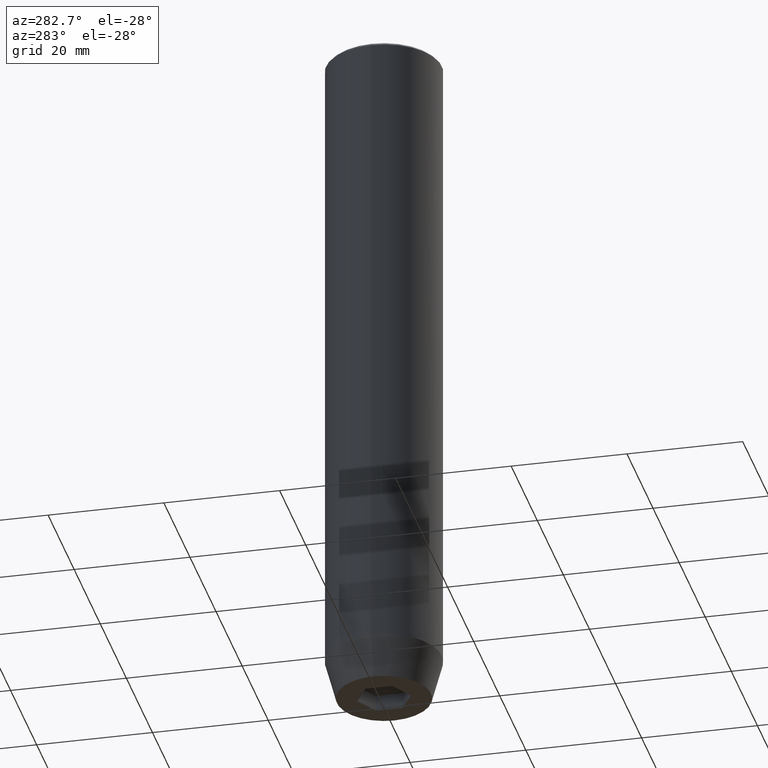
[diagram: clean part render]
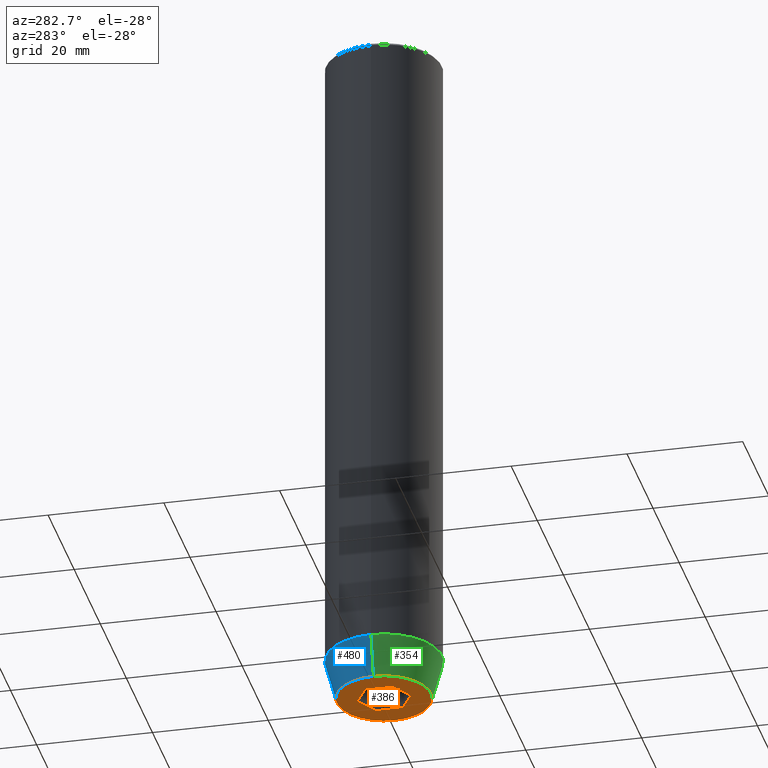
[diagram: same view with three faces highlighted in distinct colors, each labeled with its STEP entity id]
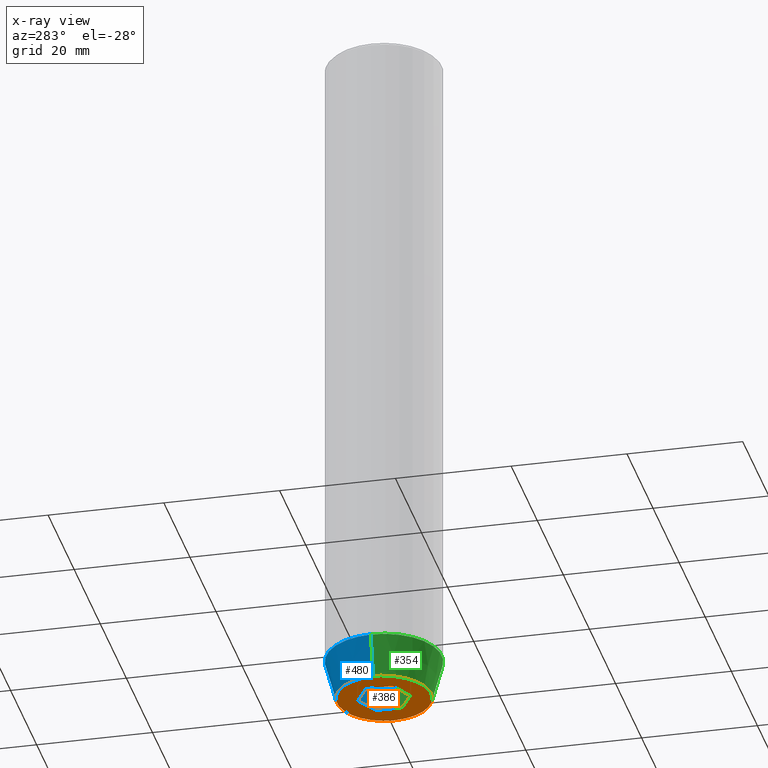
[diagram: x-ray of the same camera — body ghosted, the three highlighted faces saturated]
A machine part, auxiliary view with three faces highlighted in distinct colors.
The next image is the same camera in x-ray (body ghosted, the three faces saturated) — at least one of them is partly hidden behind the body in this view.
Their STEP definitions:

[orange] entity #386 — the highlighted planar face has unit normal (0, 0, -1).
#1 = VERTEX_POINT ( 'NONE', #94 ) ;
#27 = EDGE_CURVE ( 'NONE', #186, #104, #553, .T. ) ;
#33 = CARTESIAN_POINT ( 'NONE',  ( -4.000000000000000000, 2.309401076758503368, -120.0000000000000000 ) ) ;
#48 = DIRECTION ( 'NONE',  ( 0.000000000000000000, -1.000000000000000000, 0.000000000000000000 ) ) ;
#52 = AXIS2_PLACEMENT_3D ( 'NONE', #465, #102, #151 ) ;
#70 = ORIENTED_EDGE ( 'NONE', *, *, #536, .F. ) ;
#91 = AXIS2_PLACEMENT_3D ( 'NONE', #288, #454, #414 ) ;
#94 = CARTESIAN_POINT ( 'NONE',  ( 2.168404344971008868E-16, 4.618802153517005848, -120.0000000000000000 ) ) ;
#102 = DIRECTION ( 'NONE',  ( -0.000000000000000000, -0.000000000000000000, 1.000000000000000000 ) ) ;
#104 = VERTEX_POINT ( 'NONE', #33 ) ;
#107 = CARTESIAN_POINT ( 'NONE',  ( 0.000000000000000000, 0.000000000000000000, -120.0000000000000000 ) ) ;
#110 = AXIS2_PLACEMENT_3D ( 'NONE', #107, #160, #257 ) ;
#114 = ORIENTED_EDGE ( 'NONE', *, *, #395, .F. ) ;
#117 = EDGE_LOOP ( 'NONE', ( #266, #70 ) ) ;
#124 = EDGE_LOOP ( 'NONE', ( #327, #402, #361, #280, #114, #199 ) ) ;
#139 = VERTEX_POINT ( 'NONE', #526 ) ;
#144 = FACE_OUTER_BOUND ( 'NONE', #117, .T. ) ;
#147 = VECTOR ( 'NONE', #230, 1000.000000000000000 ) ;
#151 = DIRECTION ( 'NONE',  ( 1.000000000000000000, 0.000000000000000000, 0.000000000000000000 ) ) ;
#153 = CIRCLE ( 'NONE', #52, 8.124355652982135467 ) ;
#154 = CARTESIAN_POINT ( 'NONE',  ( 4.000000000000000000, -2.309401076758502480, -120.0000000000000000 ) ) ;
#159 = CARTESIAN_POINT ( 'NONE',  ( -4.000000000000000000, 0.000000000000000000, -120.0000000000000000 ) ) ;
#160 = DIRECTION ( 'NONE',  ( -0.000000000000000000, -0.000000000000000000, 1.000000000000000000 ) ) ;
#182 = VERTEX_POINT ( 'NONE', #204 ) ;
#186 = VERTEX_POINT ( 'NONE', #325 ) ;
#188 = EDGE_CURVE ( 'NONE', #1, #139, #409, .T. ) ;
#195 = VECTOR ( 'NONE', #578, 999.9999999999998863 ) ;
#199 = ORIENTED_EDGE ( 'NONE', *, *, #188, .F. ) ;
#204 = CARTESIAN_POINT ( 'NONE',  ( -8.124355652982135467, 1.109796706851640556E-15, -120.0000000000000000 ) ) ;
#207 = VERTEX_POINT ( 'NONE', #154 ) ;
#208 = LINE ( 'NONE', #344, #367 ) ;
#230 = DIRECTION ( 'NONE',  ( 0.8660254037844385966, -0.5000000000000001110, 0.000000000000000000 ) ) ;
#242 = CARTESIAN_POINT ( 'NONE',  ( 2.000000000000000888, -3.464101615137754386, -120.0000000000000000 ) ) ;
#252 = CARTESIAN_POINT ( 'NONE',  ( 4.336808689942017736E-16, -4.618802153517006737, -120.0000000000000000 ) ) ;
#253 = VECTOR ( 'NONE', #48, 1000.000000000000000 ) ;
#257 = DIRECTION ( 'NONE',  ( 1.000000000000000000, 0.000000000000000000, 0.000000000000000000 ) ) ;
#266 = ORIENTED_EDGE ( 'NONE', *, *, #512, .F. ) ;
#272 = EDGE_CURVE ( 'NONE', #529, #186, #208, .T. ) ;
#280 = ORIENTED_EDGE ( 'NONE', *, *, #467, .F. ) ;
#288 = CARTESIAN_POINT ( 'NONE',  ( 0.000000000000000000, 8.124355652982135467, -120.0000000000000000 ) ) ;
#310 = DIRECTION ( 'NONE',  ( 0.000000000000000000, 1.000000000000000000, 0.000000000000000000 ) ) ;
#325 = CARTESIAN_POINT ( 'NONE',  ( -4.000000000000000000, -2.309401076758503368, -120.0000000000000000 ) ) ;
#327 = ORIENTED_EDGE ( 'NONE', *, *, #430, .F. ) ;
#328 = CARTESIAN_POINT ( 'NONE',  ( 8.124355652982135467, 0.000000000000000000, -120.0000000000000000 ) ) ;
#344 = CARTESIAN_POINT ( 'NONE',  ( -2.000000000000000888, -3.464101615137754386, -120.0000000000000000 ) ) ;
#361 = ORIENTED_EDGE ( 'NONE', *, *, #272, .F. ) ;
#367 = VECTOR ( 'NONE', #477, 1000.000000000000114 ) ;
#386 = ADVANCED_FACE ( 'NONE', ( #461, #144 ), #546, .T. ) ;
#394 = VERTEX_POINT ( 'NONE', #328 ) ;
#395 = EDGE_CURVE ( 'NONE', #139, #207, #582, .T. ) ;
#400 = CIRCLE ( 'NONE', #110, 8.124355652982135467 ) ;
#402 = ORIENTED_EDGE ( 'NONE', *, *, #27, .F. ) ;
#409 = LINE ( 'NONE', #513, #147 ) ;
#414 = DIRECTION ( 'NONE',  ( -1.000000000000000000, 0.000000000000000000, -0.000000000000000000 ) ) ;
#430 = EDGE_CURVE ( 'NONE', #104, #1, #581, .T. ) ;
#446 = VECTOR ( 'NONE', #310, 1000.000000000000000 ) ;
#454 = DIRECTION ( 'NONE',  ( 0.000000000000000000, 0.000000000000000000, -1.000000000000000000 ) ) ;
#455 = LINE ( 'NONE', #242, #551 ) ;
#461 = FACE_BOUND ( 'NONE', #124, .T. ) ;
#465 = CARTESIAN_POINT ( 'NONE',  ( 0.000000000000000000, 0.000000000000000000, -120.0000000000000000 ) ) ;
#467 = EDGE_CURVE ( 'NONE', #207, #529, #455, .T. ) ;
#477 = DIRECTION ( 'NONE',  ( -0.8660254037844384856, 0.5000000000000002220, 0.000000000000000000 ) ) ;
#496 = CARTESIAN_POINT ( 'NONE',  ( -2.000000000000000000, 3.464101615137754830, -120.0000000000000000 ) ) ;
#500 = CARTESIAN_POINT ( 'NONE',  ( 4.000000000000000000, 0.000000000000000000, -120.0000000000000000 ) ) ;
#512 = EDGE_CURVE ( 'NONE', #394, #182, #153, .T. ) ;
#513 = CARTESIAN_POINT ( 'NONE',  ( 2.000000000000000444, 3.464101615137754386, -120.0000000000000000 ) ) ;
#526 = CARTESIAN_POINT ( 'NONE',  ( 4.000000000000000000, 2.309401076758503368, -120.0000000000000000 ) ) ;
#529 = VERTEX_POINT ( 'NONE', #252 ) ;
#536 = EDGE_CURVE ( 'NONE', #182, #394, #400, .T. ) ;
#546 = PLANE ( 'NONE',  #91 ) ;
#551 = VECTOR ( 'NONE', #585, 1000.000000000000114 ) ;
#553 = LINE ( 'NONE', #159, #446 ) ;
#578 = DIRECTION ( 'NONE',  ( 0.8660254037844387076, 0.5000000000000001110, 0.000000000000000000 ) ) ;
#581 = LINE ( 'NONE', #496, #195 ) ;
#582 = LINE ( 'NONE', #500, #253 ) ;
#585 = DIRECTION ( 'NONE',  ( -0.8660254037844384856, -0.5000000000000002220, 0.000000000000000000 ) ) ;

[blue] entity #480 — the highlighted conical surface has half-angle 15 deg.
#40 = VERTEX_POINT ( 'NONE', #136 ) ;
#52 = AXIS2_PLACEMENT_3D ( 'NONE', #465, #102, #151 ) ;
#83 = CARTESIAN_POINT ( 'NONE',  ( 10.00000000000000000, 0.000000000000000000, -112.9999999999999858 ) ) ;
#86 = LINE ( 'NONE', #243, #237 ) ;
#101 = AXIS2_PLACEMENT_3D ( 'NONE', #137, #383, #550 ) ;
#102 = DIRECTION ( 'NONE',  ( -0.000000000000000000, -0.000000000000000000, 1.000000000000000000 ) ) ;
#120 = CARTESIAN_POINT ( 'NONE',  ( -10.00000000000000000, 1.224646799147353256E-15, -112.9999999999999858 ) ) ;
#135 = ORIENTED_EDGE ( 'NONE', *, *, #512, .T. ) ;
#136 = CARTESIAN_POINT ( 'NONE',  ( -10.00000000000000000, 1.224646799147353256E-15, -112.9999999999999858 ) ) ;
#137 = CARTESIAN_POINT ( 'NONE',  ( 0.000000000000000000, 0.000000000000000000, -112.9999999999999858 ) ) ;
#143 = EDGE_CURVE ( 'NONE', #182, #40, #569, .T. ) ;
#148 = DIRECTION ( 'NONE',  ( 0.2588190451025213501, 0.000000000000000000, 0.9659258262890680902 ) ) ;
#151 = DIRECTION ( 'NONE',  ( 1.000000000000000000, 0.000000000000000000, 0.000000000000000000 ) ) ;
#153 = CIRCLE ( 'NONE', #52, 8.124355652982135467 ) ;
#182 = VERTEX_POINT ( 'NONE', #204 ) ;
#192 = FACE_OUTER_BOUND ( 'NONE', #212, .T. ) ;
#204 = CARTESIAN_POINT ( 'NONE',  ( -8.124355652982135467, 1.109796706851640556E-15, -120.0000000000000000 ) ) ;
#212 = EDGE_LOOP ( 'NONE', ( #135, #343, #495, #485 ) ) ;
#237 = VECTOR ( 'NONE', #148, 1000.000000000000000 ) ;
#243 = CARTESIAN_POINT ( 'NONE',  ( 10.00000000000000000, 0.000000000000000000, -112.9999999999999858 ) ) ;
#289 = VERTEX_POINT ( 'NONE', #83 ) ;
#313 = CARTESIAN_POINT ( 'NONE',  ( 0.000000000000000000, 0.000000000000000000, -112.9999999999999858 ) ) ;
#318 = DIRECTION ( 'NONE',  ( -0.2588190451025213501, 3.169619151431772337E-17, 0.9659258262890680902 ) ) ;
#323 = DIRECTION ( 'NONE',  ( -0.000000000000000000, -0.000000000000000000, 1.000000000000000000 ) ) ;
#328 = CARTESIAN_POINT ( 'NONE',  ( 8.124355652982135467, 0.000000000000000000, -120.0000000000000000 ) ) ;
#341 = EDGE_CURVE ( 'NONE', #289, #40, #508, .T. ) ;
#343 = ORIENTED_EDGE ( 'NONE', *, *, #143, .T. ) ;
#383 = DIRECTION ( 'NONE',  ( -0.000000000000000000, -0.000000000000000000, 1.000000000000000000 ) ) ;
#394 = VERTEX_POINT ( 'NONE', #328 ) ;
#406 = CONICAL_SURFACE ( 'NONE', #101, 10.00000000000000000, 0.2617993877991500740 ) ;
#437 = DIRECTION ( 'NONE',  ( 1.000000000000000000, 0.000000000000000000, 0.000000000000000000 ) ) ;
#465 = CARTESIAN_POINT ( 'NONE',  ( 0.000000000000000000, 0.000000000000000000, -120.0000000000000000 ) ) ;
#480 = ADVANCED_FACE ( 'NONE', ( #192 ), #406, .T. ) ;
#482 = AXIS2_PLACEMENT_3D ( 'NONE', #313, #323, #437 ) ;
#485 = ORIENTED_EDGE ( 'NONE', *, *, #490, .F. ) ;
#490 = EDGE_CURVE ( 'NONE', #394, #289, #86, .T. ) ;
#495 = ORIENTED_EDGE ( 'NONE', *, *, #341, .F. ) ;
#508 = CIRCLE ( 'NONE', #482, 10.00000000000000000 ) ;
#512 = EDGE_CURVE ( 'NONE', #394, #182, #153, .T. ) ;
#540 = VECTOR ( 'NONE', #318, 1000.000000000000000 ) ;
#550 = DIRECTION ( 'NONE',  ( 1.000000000000000000, 0.000000000000000000, 0.000000000000000000 ) ) ;
#569 = LINE ( 'NONE', #120, #540 ) ;

[green] entity #354 — the highlighted conical surface has half-angle 15 deg.
#21 = AXIS2_PLACEMENT_3D ( 'NONE', #352, #524, #520 ) ;
#40 = VERTEX_POINT ( 'NONE', #136 ) ;
#51 = CONICAL_SURFACE ( 'NONE', #531, 10.00000000000000000, 0.2617993877991500740 ) ;
#71 = CIRCLE ( 'NONE', #21, 10.00000000000000000 ) ;
#83 = CARTESIAN_POINT ( 'NONE',  ( 10.00000000000000000, 0.000000000000000000, -112.9999999999999858 ) ) ;
#86 = LINE ( 'NONE', #243, #237 ) ;
#107 = CARTESIAN_POINT ( 'NONE',  ( 0.000000000000000000, 0.000000000000000000, -120.0000000000000000 ) ) ;
#110 = AXIS2_PLACEMENT_3D ( 'NONE', #107, #160, #257 ) ;
#120 = CARTESIAN_POINT ( 'NONE',  ( -10.00000000000000000, 1.224646799147353256E-15, -112.9999999999999858 ) ) ;
#136 = CARTESIAN_POINT ( 'NONE',  ( -10.00000000000000000, 1.224646799147353256E-15, -112.9999999999999858 ) ) ;
#143 = EDGE_CURVE ( 'NONE', #182, #40, #569, .T. ) ;
#148 = DIRECTION ( 'NONE',  ( 0.2588190451025213501, 0.000000000000000000, 0.9659258262890680902 ) ) ;
#160 = DIRECTION ( 'NONE',  ( -0.000000000000000000, -0.000000000000000000, 1.000000000000000000 ) ) ;
#161 = ORIENTED_EDGE ( 'NONE', *, *, #490, .T. ) ;
#182 = VERTEX_POINT ( 'NONE', #204 ) ;
#189 = DIRECTION ( 'NONE',  ( 1.000000000000000000, 0.000000000000000000, 0.000000000000000000 ) ) ;
#204 = CARTESIAN_POINT ( 'NONE',  ( -8.124355652982135467, 1.109796706851640556E-15, -120.0000000000000000 ) ) ;
#234 = FACE_OUTER_BOUND ( 'NONE', #370, .T. ) ;
#237 = VECTOR ( 'NONE', #148, 1000.000000000000000 ) ;
#238 = CARTESIAN_POINT ( 'NONE',  ( 0.000000000000000000, 0.000000000000000000, -112.9999999999999858 ) ) ;
#243 = CARTESIAN_POINT ( 'NONE',  ( 10.00000000000000000, 0.000000000000000000, -112.9999999999999858 ) ) ;
#257 = DIRECTION ( 'NONE',  ( 1.000000000000000000, 0.000000000000000000, 0.000000000000000000 ) ) ;
#259 = EDGE_CURVE ( 'NONE', #40, #289, #71, .T. ) ;
#289 = VERTEX_POINT ( 'NONE', #83 ) ;
#306 = ORIENTED_EDGE ( 'NONE', *, *, #143, .F. ) ;
#318 = DIRECTION ( 'NONE',  ( -0.2588190451025213501, 3.169619151431772337E-17, 0.9659258262890680902 ) ) ;
#328 = CARTESIAN_POINT ( 'NONE',  ( 8.124355652982135467, 0.000000000000000000, -120.0000000000000000 ) ) ;
#332 = DIRECTION ( 'NONE',  ( -0.000000000000000000, -0.000000000000000000, 1.000000000000000000 ) ) ;
#352 = CARTESIAN_POINT ( 'NONE',  ( 0.000000000000000000, 0.000000000000000000, -112.9999999999999858 ) ) ;
#354 = ADVANCED_FACE ( 'NONE', ( #234 ), #51, .T. ) ;
#356 = ORIENTED_EDGE ( 'NONE', *, *, #536, .T. ) ;
#370 = EDGE_LOOP ( 'NONE', ( #306, #356, #161, #519 ) ) ;
#394 = VERTEX_POINT ( 'NONE', #328 ) ;
#400 = CIRCLE ( 'NONE', #110, 8.124355652982135467 ) ;
#490 = EDGE_CURVE ( 'NONE', #394, #289, #86, .T. ) ;
#519 = ORIENTED_EDGE ( 'NONE', *, *, #259, .F. ) ;
#520 = DIRECTION ( 'NONE',  ( 1.000000000000000000, 0.000000000000000000, 0.000000000000000000 ) ) ;
#524 = DIRECTION ( 'NONE',  ( -0.000000000000000000, -0.000000000000000000, 1.000000000000000000 ) ) ;
#531 = AXIS2_PLACEMENT_3D ( 'NONE', #238, #332, #189 ) ;
#536 = EDGE_CURVE ( 'NONE', #182, #394, #400, .T. ) ;
#540 = VECTOR ( 'NONE', #318, 1000.000000000000000 ) ;
#569 = LINE ( 'NONE', #120, #540 ) ;